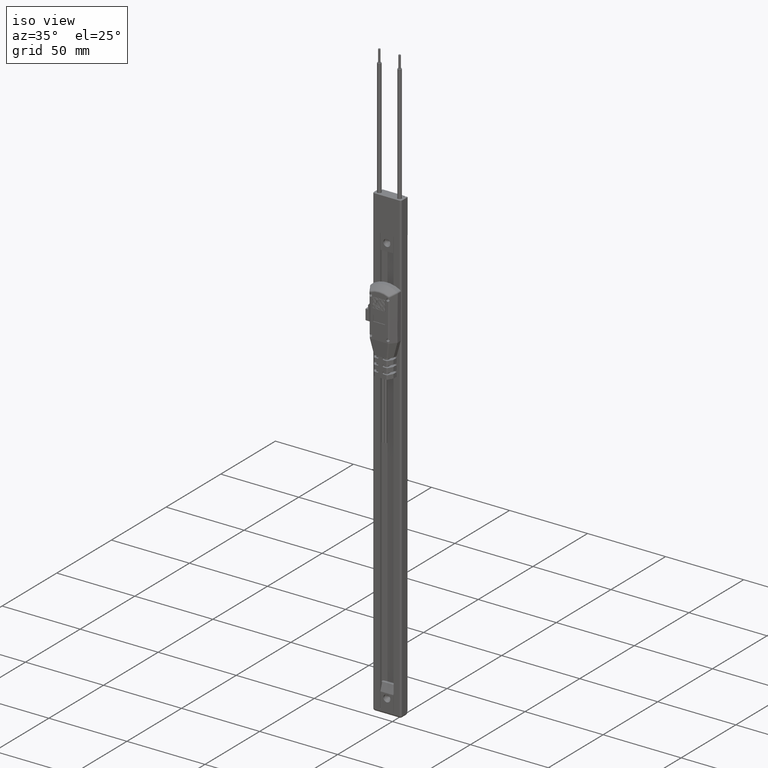
[diagram: clean part render]
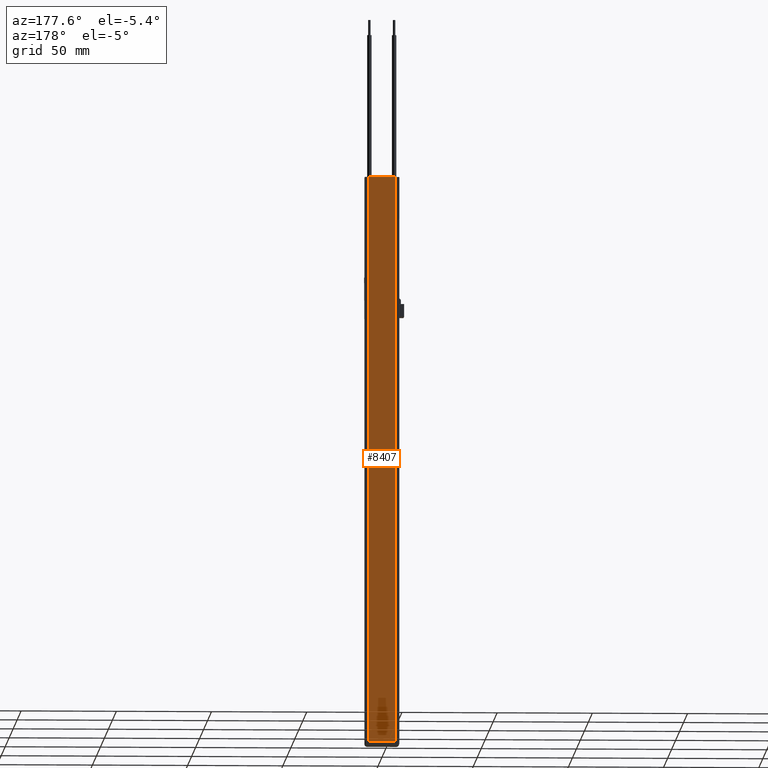
[diagram: tour spotlight — one face highlighted and labeled with its STEP entity id]
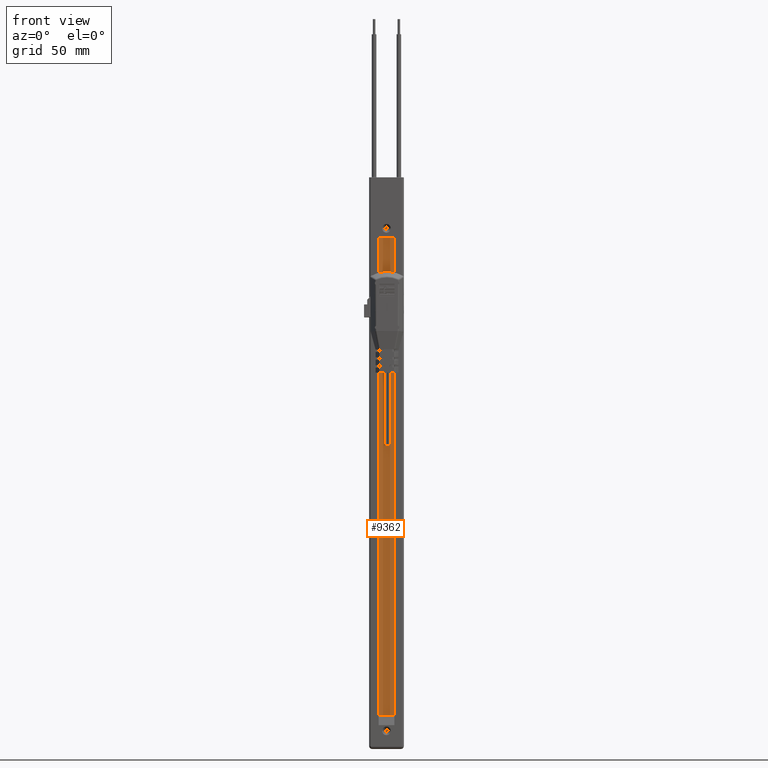
[diagram: tour spotlight — one face highlighted and labeled with its STEP entity id]
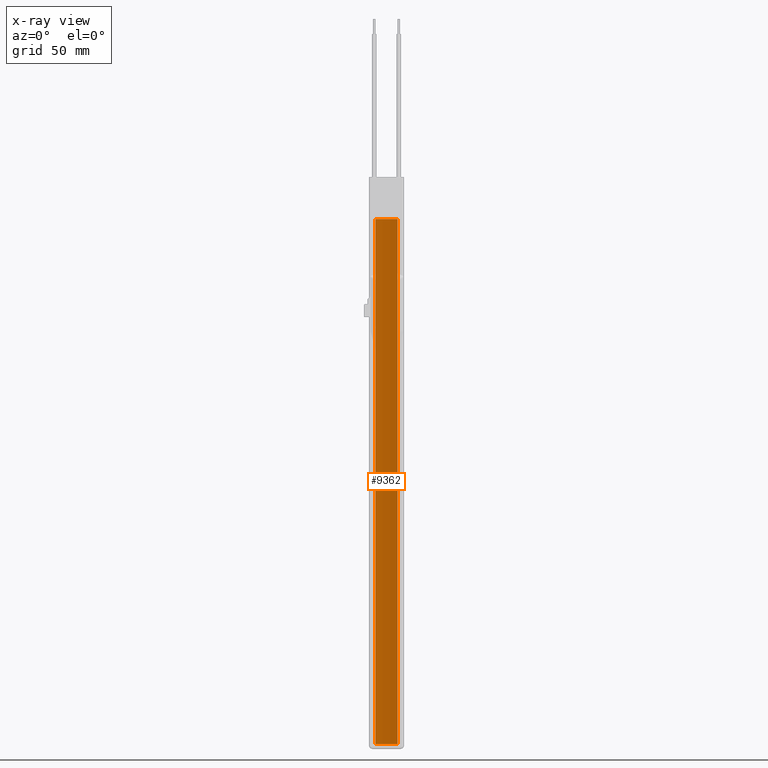
[diagram: x-ray of the same camera — body ghosted, this tour face saturated]
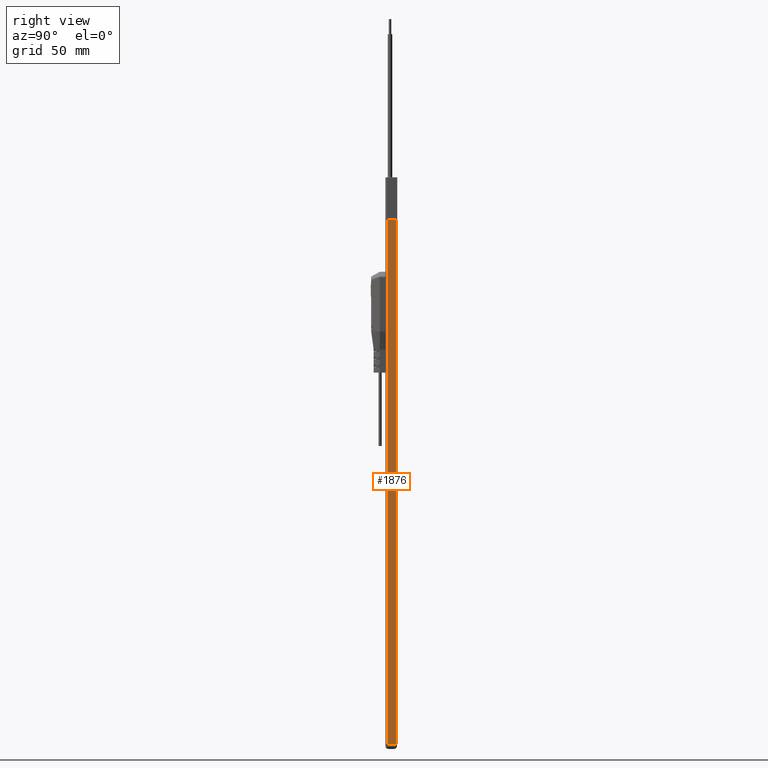
[diagram: tour spotlight — one face highlighted and labeled with its STEP entity id]
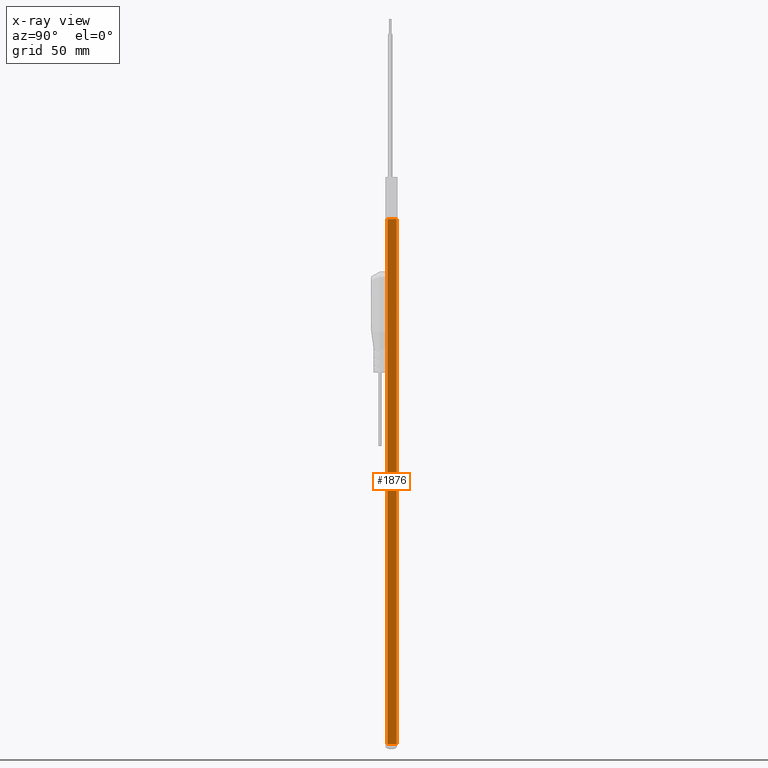
[diagram: x-ray of the same camera — body ghosted, this tour face saturated]
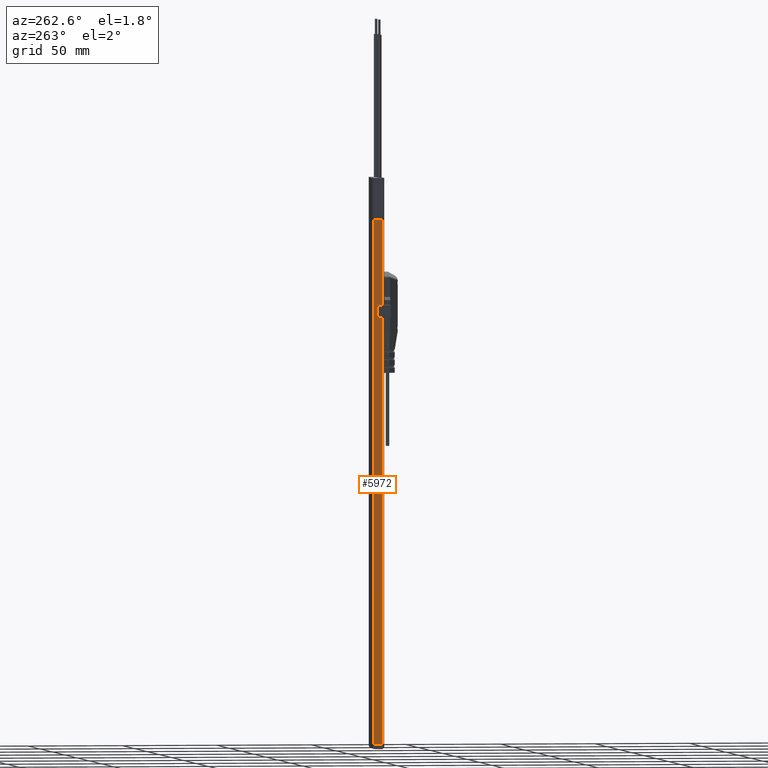
[diagram: tour spotlight — one face highlighted and labeled with its STEP entity id]
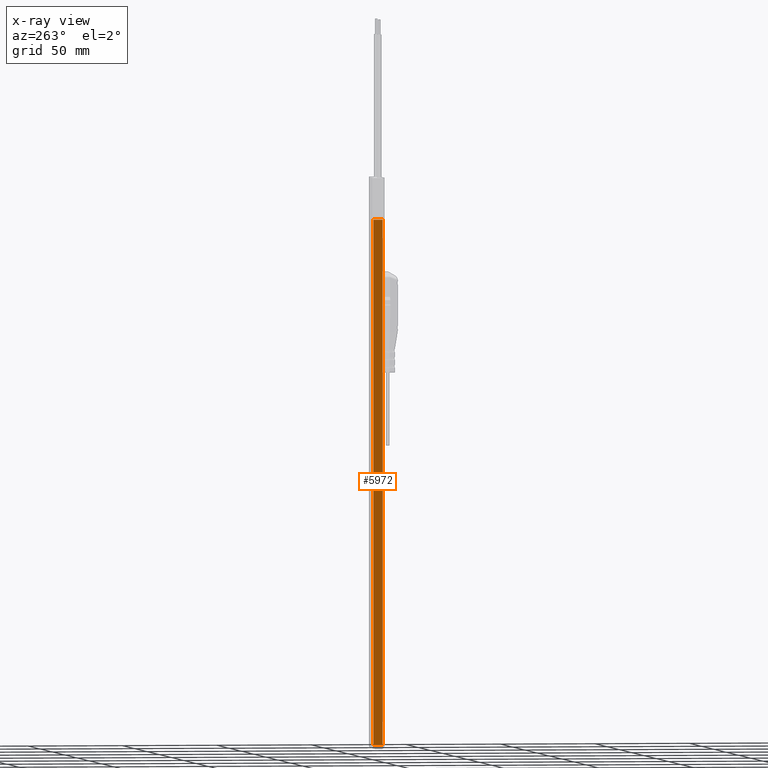
[diagram: x-ray of the same camera — body ghosted, this tour face saturated]
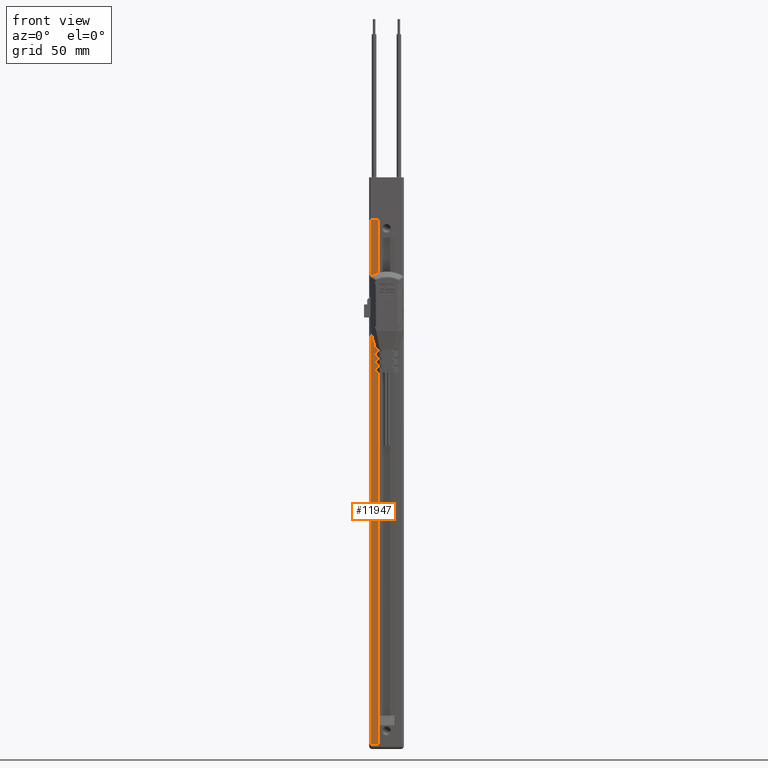
[diagram: tour spotlight — one face highlighted and labeled with its STEP entity id]
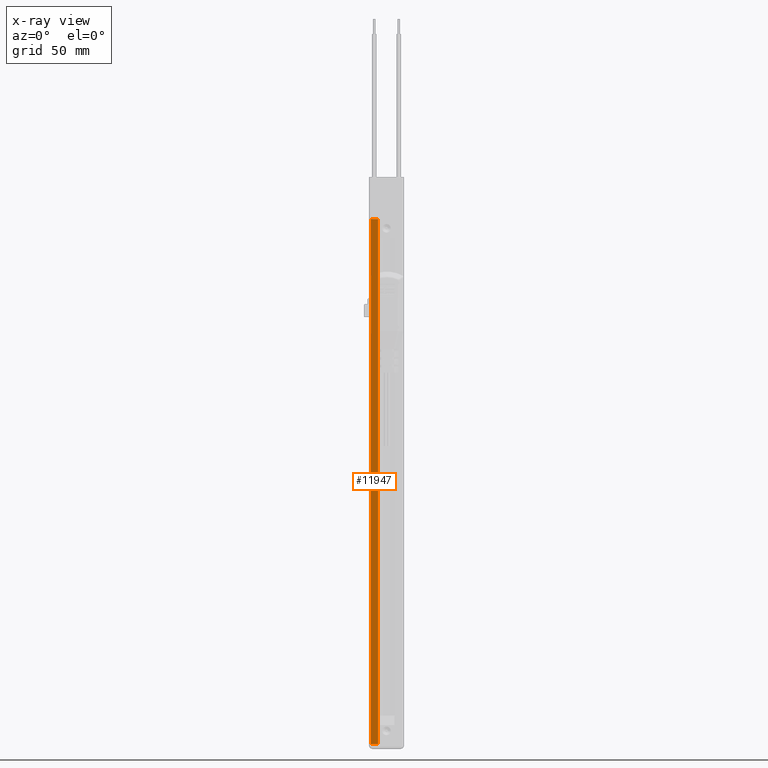
[diagram: x-ray of the same camera — body ghosted, this tour face saturated]
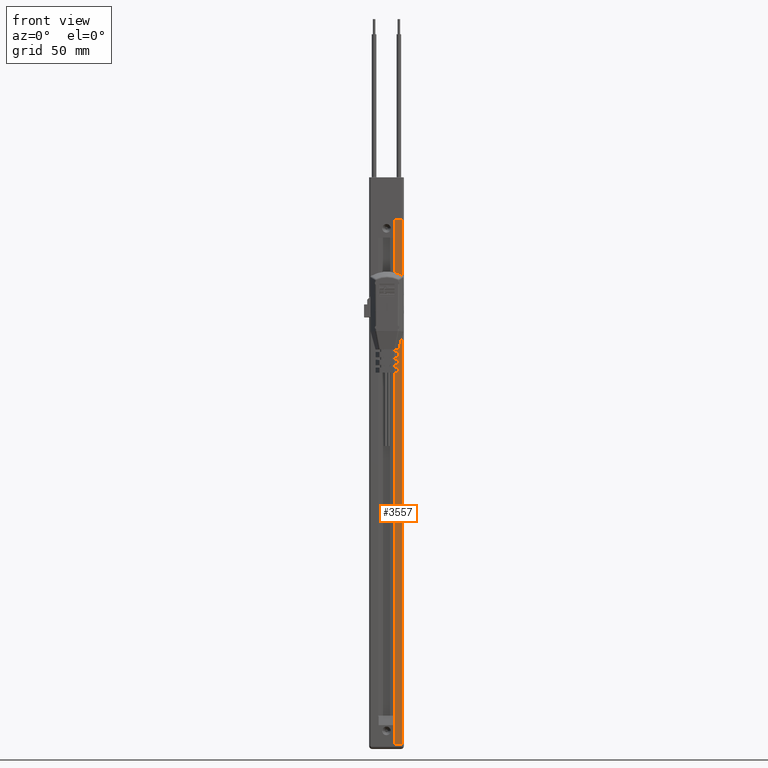
[diagram: tour spotlight — one face highlighted and labeled with its STEP entity id]
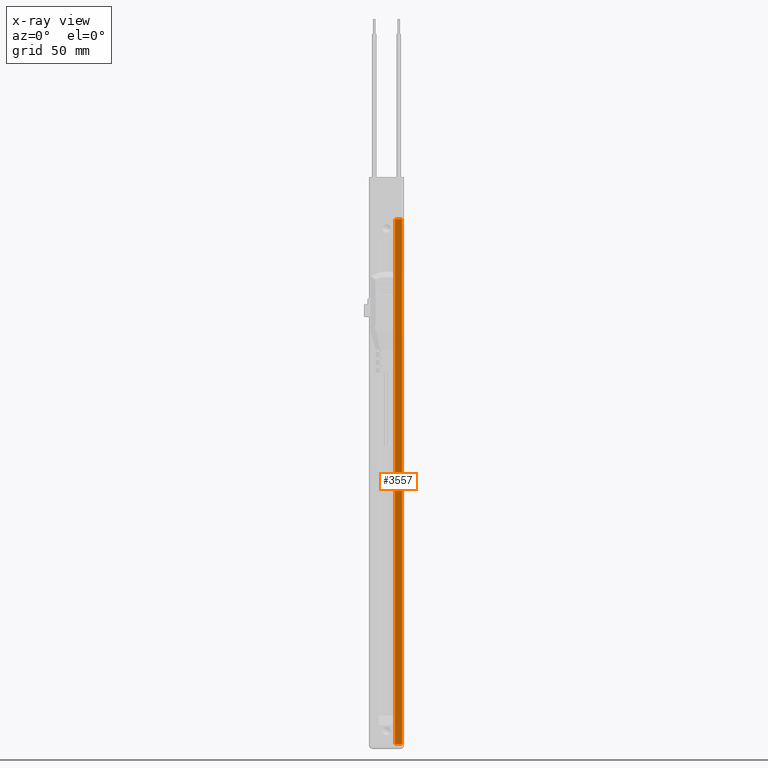
[diagram: x-ray of the same camera — body ghosted, this tour face saturated]
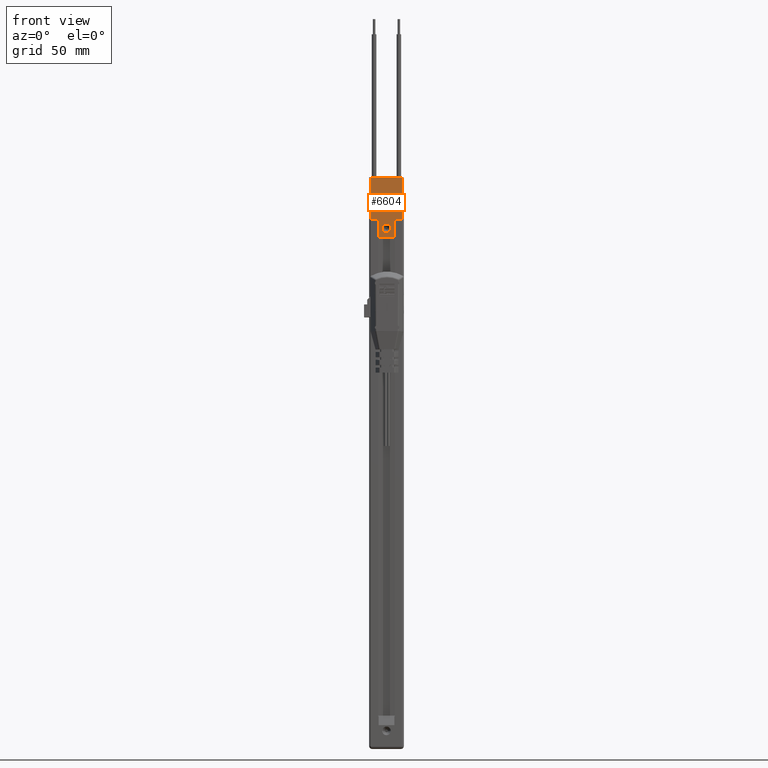
[diagram: tour spotlight — one face highlighted and labeled with its STEP entity id]
A machine part: a face-by-face anatomy tour. The part has 426 B-rep faces; the first image is the clean iso view, then the 7 largest visible faces are spotlighted one at a time (largest first), each with its STEP entity span.

Face 1 — auxiliary view, entity #8407. In plain terms, the highlighted planar face has unit normal (0, -1, 0).
Definition (entity closure, byte-faithful):
#329 = LINE ( 'NONE', #1498, #11749 ) ;
#696 = DIRECTION ( 'NONE',  ( -0.000000000000000000, -0.000000000000000000, -1.000000000000000000 ) ) ;
#1097 = ORIENTED_EDGE ( 'NONE', *, *, #7080, .T. ) ;
#1170 = VECTOR ( 'NONE', #696, 1000.000000000000000 ) ;
#1498 = CARTESIAN_POINT ( 'NONE',  ( 7.099999999999999645, 1.199999999999997957, -148.7500000000000000 ) ) ;
#1891 = DIRECTION ( 'NONE',  ( 0.000000000000000000, -1.000000000000000000, 0.000000000000000000 ) ) ;
#1932 = PLANE ( 'NONE',  #2416 ) ;
#1981 = DIRECTION ( 'NONE',  ( 0.000000000000000000, -0.000000000000000000, -1.000000000000000000 ) ) ;
#2194 = CARTESIAN_POINT ( 'NONE',  ( -7.099999999999999645, 1.199999999999997957, 148.7500000000000000 ) ) ;
#2196 = EDGE_CURVE ( 'NONE', #10244, #10717, #13509, .T. ) ;
#2416 = AXIS2_PLACEMENT_3D ( 'NONE', #5084, #1891, #1981 ) ;
#2745 = VECTOR ( 'NONE', #11478, 1000.000000000000000 ) ;
#2921 = ORIENTED_EDGE ( 'NONE', *, *, #7151, .T. ) ;
#3522 = LINE ( 'NONE', #12378, #1170 ) ;
#3776 = ORIENTED_EDGE ( 'NONE', *, *, #4885, .F. ) ;
#3802 = VERTEX_POINT ( 'NONE', #8550 ) ;
#4135 = ORIENTED_EDGE ( 'NONE', *, *, #2196, .F. ) ;
#4647 = VECTOR ( 'NONE', #7258, 1000.000000000000000 ) ;
#4717 = DIRECTION ( 'NONE',  ( -1.000000000000000000, 0.000000000000000000, 0.000000000000000000 ) ) ;
#4885 = EDGE_CURVE ( 'NONE', #10717, #6773, #6651, .T. ) ;
#5084 = CARTESIAN_POINT ( 'NONE',  ( 7.099999999999999645, 1.199999999999997957, 148.7500000000000000 ) ) ;
#6651 = LINE ( 'NONE', #11387, #2745 ) ;
#6773 = VERTEX_POINT ( 'NONE', #8232 ) ;
#7080 = EDGE_CURVE ( 'NONE', #3802, #6773, #329, .T. ) ;
#7151 = EDGE_CURVE ( 'NONE', #10244, #3802, #3522, .T. ) ;
#7258 = DIRECTION ( 'NONE',  ( -1.000000000000000000, 0.000000000000000000, 0.000000000000000000 ) ) ;
#7612 = CARTESIAN_POINT ( 'NONE',  ( 7.099999999999999645, 1.199999999999997957, 148.7500000000000000 ) ) ;
#8232 = CARTESIAN_POINT ( 'NONE',  ( -7.099999999999999645, 1.199999999999997957, -148.7500000000000000 ) ) ;
#8241 = FACE_OUTER_BOUND ( 'NONE', #10268, .T. ) ;
#8407 = ADVANCED_FACE ( 'NONE', ( #8241 ), #1932, .F. ) ;
#8550 = CARTESIAN_POINT ( 'NONE',  ( 7.099999999999999645, 1.199999999999997957, -148.7500000000000000 ) ) ;
#10244 = VERTEX_POINT ( 'NONE', #7612 ) ;
#10268 = EDGE_LOOP ( 'NONE', ( #1097, #3776, #4135, #2921 ) ) ;
#10717 = VERTEX_POINT ( 'NONE', #2194 ) ;
#11387 = CARTESIAN_POINT ( 'NONE',  ( -7.099999999999999645, 1.199999999999997957, 148.7500000000000000 ) ) ;
#11478 = DIRECTION ( 'NONE',  ( -0.000000000000000000, -0.000000000000000000, -1.000000000000000000 ) ) ;
#11749 = VECTOR ( 'NONE', #4717, 1000.000000000000000 ) ;
#12378 = CARTESIAN_POINT ( 'NONE',  ( 7.099999999999999645, 1.199999999999997957, 148.7500000000000000 ) ) ;
#13509 = LINE ( 'NONE', #13655, #4647 ) ;
#13655 = CARTESIAN_POINT ( 'NONE',  ( 7.099999999999999645, 1.199999999999997957, 148.7500000000000000 ) ) ;

Face 2 — front view, entity #9362. An x-ray twin of the same camera follows (body ghosted, this face saturated) — the face is partly hidden behind the body. In plain terms, the highlighted cylindrical surface (partial cylindrical patch) has radius 33.7261 mm, axis along (0, 0, -1).
Definition (entity closure, byte-faithful):
#496 = CARTESIAN_POINT ( 'NONE',  ( 0.000000000000000000, 35.12614304289426315, 137.7500000000000000 ) ) ;
#810 = ORIENTED_EDGE ( 'NONE', *, *, #7844, .F. ) ;
#1012 = DIRECTION ( 'NONE',  ( -0.000000000000000000, -0.000000000000000000, -1.000000000000000000 ) ) ;
#1212 = EDGE_LOOP ( 'NONE', ( #9853, #810, #3066, #13319 ) ) ;
#1459 = FACE_OUTER_BOUND ( 'NONE', #1212, .T. ) ;
#2088 = VERTEX_POINT ( 'NONE', #4884 ) ;
#2100 = EDGE_CURVE ( 'NONE', #2088, #4991, #10856, .T. ) ;
#2949 = VERTEX_POINT ( 'NONE', #7993 ) ;
#3066 = ORIENTED_EDGE ( 'NONE', *, *, #10931, .F. ) ;
#3117 = DIRECTION ( 'NONE',  ( 1.000000000000000000, 0.000000000000000000, 0.000000000000000000 ) ) ;
#3606 = AXIS2_PLACEMENT_3D ( 'NONE', #7139, #6097, #4029 ) ;
#4029 = DIRECTION ( 'NONE',  ( 1.000000000000000000, 0.000000000000000000, 0.000000000000000000 ) ) ;
#4241 = CARTESIAN_POINT ( 'NONE',  ( 0.000000000000000000, 35.12614304289426315, 137.7500000000000000 ) ) ;
#4884 = CARTESIAN_POINT ( 'NONE',  ( 5.785857157145725793, 1.899999999999999023, 137.7500000000000000 ) ) ;
#4936 = CIRCLE ( 'NONE', #8594, 33.72614304289426457 ) ;
#4991 = VERTEX_POINT ( 'NONE', #13394 ) ;
#6097 = DIRECTION ( 'NONE',  ( -0.000000000000000000, -0.000000000000000000, -1.000000000000000000 ) ) ;
#6131 = DIRECTION ( 'NONE',  ( -0.000000000000000000, -0.000000000000000000, -1.000000000000000000 ) ) ;
#6823 = DIRECTION ( 'NONE',  ( -1.000000000000000000, 0.000000000000000000, 0.000000000000000000 ) ) ;
#7139 = CARTESIAN_POINT ( 'NONE',  ( 0.000000000000000000, 35.12614304289426315, -137.7500000000000000 ) ) ;
#7178 = CIRCLE ( 'NONE', #3606, 33.72614304289426457 ) ;
#7605 = VERTEX_POINT ( 'NONE', #7726 ) ;
#7726 = CARTESIAN_POINT ( 'NONE',  ( -5.785857157145717800, 1.899999999999999245, -137.7500000000000000 ) ) ;
#7844 = EDGE_CURVE ( 'NONE', #2949, #7605, #13050, .T. ) ;
#7993 = CARTESIAN_POINT ( 'NONE',  ( -5.785857157145717800, 1.899999999999999245, 137.7500000000000000 ) ) ;
#8029 = VECTOR ( 'NONE', #11219, 1000.000000000000000 ) ;
#8594 = AXIS2_PLACEMENT_3D ( 'NONE', #4241, #1012, #3117 ) ;
#9136 = DIRECTION ( 'NONE',  ( -0.000000000000000000, -0.000000000000000000, -1.000000000000000000 ) ) ;
#9362 = ADVANCED_FACE ( 'NONE', ( #1459 ), #10388, .F. ) ;
#9853 = ORIENTED_EDGE ( 'NONE', *, *, #10030, .T. ) ;
#10030 = EDGE_CURVE ( 'NONE', #4991, #7605, #7178, .T. ) ;
#10288 = CARTESIAN_POINT ( 'NONE',  ( 5.785857157145725793, 1.899999999999999023, 137.7500000000000000 ) ) ;
#10388 = CYLINDRICAL_SURFACE ( 'NONE', #13829, 33.72614304289426457 ) ;
#10856 = LINE ( 'NONE', #10288, #8029 ) ;
#10931 = EDGE_CURVE ( 'NONE', #2088, #2949, #4936, .T. ) ;
#11219 = DIRECTION ( 'NONE',  ( -0.000000000000000000, -0.000000000000000000, -1.000000000000000000 ) ) ;
#11560 = VECTOR ( 'NONE', #6131, 1000.000000000000000 ) ;
#13050 = LINE ( 'NONE', #13490, #11560 ) ;
#13319 = ORIENTED_EDGE ( 'NONE', *, *, #2100, .T. ) ;
#13394 = CARTESIAN_POINT ( 'NONE',  ( 5.785857157145725793, 1.899999999999999023, -137.7500000000000000 ) ) ;
#13490 = CARTESIAN_POINT ( 'NONE',  ( -5.785857157145717800, 1.899999999999999245, 137.7500000000000000 ) ) ;
#13829 = AXIS2_PLACEMENT_3D ( 'NONE', #496, #9136, #6823 ) ;

Face 3 — right view, entity #1876. An x-ray twin of the same camera follows (body ghosted, this face saturated) — the face is partly hidden behind the body. In plain terms, the highlighted planar face has unit normal (-1, -0, 0).
Definition (entity closure, byte-faithful):
#156 = VERTEX_POINT ( 'NONE', #5999 ) ;
#668 = EDGE_CURVE ( 'NONE', #7609, #156, #13887, .T. ) ;
#970 = CARTESIAN_POINT ( 'NONE',  ( -9.099999999999999645, -0.8000000000000003775, 137.7500000000000000 ) ) ;
#1468 = CARTESIAN_POINT ( 'NONE',  ( -9.099999999999999645, -0.8000000000000003775, -137.7500000000000000 ) ) ;
#1876 = ADVANCED_FACE ( 'NONE', ( #12177 ), #6280, .F. ) ;
#2953 = CARTESIAN_POINT ( 'NONE',  ( -9.099999999999999645, 4.000000000000000000, 137.7500000000000000 ) ) ;
#3041 = CARTESIAN_POINT ( 'NONE',  ( -9.099999999999999645, 5.000000000000000000, 137.7500000000000000 ) ) ;
#3772 = VECTOR ( 'NONE', #6730, 1000.000000000000000 ) ;
#3831 = CARTESIAN_POINT ( 'NONE',  ( -9.099999999999999645, 5.000000000000000000, -137.7500000000000000 ) ) ;
#4001 = EDGE_LOOP ( 'NONE', ( #5878, #7390, #7687, #5943 ) ) ;
#4070 = DIRECTION ( 'NONE',  ( -0.000000000000000000, 0.000000000000000000, -1.000000000000000000 ) ) ;
#4080 = EDGE_CURVE ( 'NONE', #6500, #11645, #10356, .T. ) ;
#4187 = EDGE_CURVE ( 'NONE', #6500, #156, #4796, .T. ) ;
#4796 = LINE ( 'NONE', #13337, #10035 ) ;
#5606 = LINE ( 'NONE', #3831, #12768 ) ;
#5878 = ORIENTED_EDGE ( 'NONE', *, *, #11900, .T. ) ;
#5943 = ORIENTED_EDGE ( 'NONE', *, *, #4080, .T. ) ;
#5999 = CARTESIAN_POINT ( 'NONE',  ( -9.099999999999999645, -0.8000000000000003775, 137.7500000000000000 ) ) ;
#6280 = PLANE ( 'NONE',  #10698 ) ;
#6500 = VERTEX_POINT ( 'NONE', #2953 ) ;
#6730 = DIRECTION ( 'NONE',  ( 0.000000000000000000, 0.000000000000000000, -1.000000000000000000 ) ) ;
#7390 = ORIENTED_EDGE ( 'NONE', *, *, #668, .T. ) ;
#7609 = VERTEX_POINT ( 'NONE', #1468 ) ;
#7687 = ORIENTED_EDGE ( 'NONE', *, *, #4187, .F. ) ;
#7917 = CARTESIAN_POINT ( 'NONE',  ( -9.099999999999999645, 4.000000000000000000, 137.7500000000000000 ) ) ;
#8102 = DIRECTION ( 'NONE',  ( 0.000000000000000000, -1.000000000000000000, 0.000000000000000000 ) ) ;
#9422 = DIRECTION ( 'NONE',  ( 0.000000000000000000, -1.000000000000000000, 0.000000000000000000 ) ) ;
#10035 = VECTOR ( 'NONE', #8102, 1000.000000000000000 ) ;
#10234 = DIRECTION ( 'NONE',  ( -0.000000000000000000, -0.000000000000000000, 1.000000000000000000 ) ) ;
#10356 = LINE ( 'NONE', #7917, #3772 ) ;
#10698 = AXIS2_PLACEMENT_3D ( 'NONE', #3041, #11592, #4070 ) ;
#11049 = CARTESIAN_POINT ( 'NONE',  ( -9.099999999999999645, 4.000000000000000000, -137.7500000000000000 ) ) ;
#11592 = DIRECTION ( 'NONE',  ( 1.000000000000000000, 0.000000000000000000, -0.000000000000000000 ) ) ;
#11645 = VERTEX_POINT ( 'NONE', #11049 ) ;
#11900 = EDGE_CURVE ( 'NONE', #11645, #7609, #5606, .T. ) ;
#12177 = FACE_OUTER_BOUND ( 'NONE', #4001, .T. ) ;
#12768 = VECTOR ( 'NONE', #9422, 1000.000000000000000 ) ;
#12888 = VECTOR ( 'NONE', #10234, 1000.000000000000000 ) ;
#13337 = CARTESIAN_POINT ( 'NONE',  ( -9.099999999999999645, 5.000000000000000000, 137.7500000000000000 ) ) ;
#13887 = LINE ( 'NONE', #970, #12888 ) ;

Face 4 — auxiliary view, entity #5972. An x-ray twin of the same camera follows (body ghosted, this face saturated) — the face is partly hidden behind the body. In plain terms, the highlighted planar face has unit normal (1, 0, 0).
Definition (entity closure, byte-faithful):
#438 = LINE ( 'NONE', #613, #4310 ) ;
#564 = LINE ( 'NONE', #1166, #6484 ) ;
#613 = CARTESIAN_POINT ( 'NONE',  ( 9.099999999999999645, 4.000000000000000000, 137.7500000000000000 ) ) ;
#1057 = ORIENTED_EDGE ( 'NONE', *, *, #6556, .F. ) ;
#1073 = DIRECTION ( 'NONE',  ( -1.000000000000000000, 0.000000000000000000, 0.000000000000000000 ) ) ;
#1166 = CARTESIAN_POINT ( 'NONE',  ( 9.099999999999999645, -0.8000000000000003775, 137.7500000000000000 ) ) ;
#1521 = VERTEX_POINT ( 'NONE', #8279 ) ;
#1690 = DIRECTION ( 'NONE',  ( -0.000000000000000000, -0.000000000000000000, 1.000000000000000000 ) ) ;
#1724 = EDGE_CURVE ( 'NONE', #7074, #8313, #438, .T. ) ;
#2180 = EDGE_CURVE ( 'NONE', #5946, #7074, #11689, .T. ) ;
#2346 = ORIENTED_EDGE ( 'NONE', *, *, #1724, .T. ) ;
#2729 = CARTESIAN_POINT ( 'NONE',  ( 9.099999999999999645, 4.000000000000000000, 137.7500000000000000 ) ) ;
#2937 = CARTESIAN_POINT ( 'NONE',  ( 9.099999999999999645, 5.000000000000000000, 137.7500000000000000 ) ) ;
#3379 = LINE ( 'NONE', #2937, #7285 ) ;
#3396 = AXIS2_PLACEMENT_3D ( 'NONE', #12835, #1073, #13758 ) ;
#3397 = CARTESIAN_POINT ( 'NONE',  ( 9.099999999999999645, 4.000000000000000000, -137.7500000000000000 ) ) ;
#3709 = ORIENTED_EDGE ( 'NONE', *, *, #2180, .T. ) ;
#4310 = VECTOR ( 'NONE', #1690, 1000.000000000000000 ) ;
#4454 = DIRECTION ( 'NONE',  ( 0.000000000000000000, 0.000000000000000000, -1.000000000000000000 ) ) ;
#5203 = CARTESIAN_POINT ( 'NONE',  ( 9.099999999999999645, 5.000000000000000000, -137.7500000000000000 ) ) ;
#5264 = FACE_OUTER_BOUND ( 'NONE', #13541, .T. ) ;
#5946 = VERTEX_POINT ( 'NONE', #11817 ) ;
#5972 = ADVANCED_FACE ( 'NONE', ( #5264 ), #6505, .F. ) ;
#6357 = ORIENTED_EDGE ( 'NONE', *, *, #10752, .T. ) ;
#6484 = VECTOR ( 'NONE', #4454, 1000.000000000000000 ) ;
#6505 = PLANE ( 'NONE',  #3396 ) ;
#6556 = EDGE_CURVE ( 'NONE', #1521, #8313, #3379, .T. ) ;
#7074 = VERTEX_POINT ( 'NONE', #3397 ) ;
#7285 = VECTOR ( 'NONE', #13080, 1000.000000000000000 ) ;
#8279 = CARTESIAN_POINT ( 'NONE',  ( 9.099999999999999645, -0.8000000000000003775, 137.7500000000000000 ) ) ;
#8313 = VERTEX_POINT ( 'NONE', #2729 ) ;
#10474 = DIRECTION ( 'NONE',  ( -0.000000000000000000, 1.000000000000000000, -0.000000000000000000 ) ) ;
#10752 = EDGE_CURVE ( 'NONE', #1521, #5946, #564, .T. ) ;
#11033 = VECTOR ( 'NONE', #10474, 1000.000000000000000 ) ;
#11689 = LINE ( 'NONE', #5203, #11033 ) ;
#11817 = CARTESIAN_POINT ( 'NONE',  ( 9.099999999999999645, -0.8000000000000003775, -137.7500000000000000 ) ) ;
#12835 = CARTESIAN_POINT ( 'NONE',  ( 9.099999999999999645, 5.000000000000000000, 137.7500000000000000 ) ) ;
#13080 = DIRECTION ( 'NONE',  ( -0.000000000000000000, 1.000000000000000000, -0.000000000000000000 ) ) ;
#13541 = EDGE_LOOP ( 'NONE', ( #1057, #6357, #3709, #2346 ) ) ;
#13758 = DIRECTION ( 'NONE',  ( 0.000000000000000000, 0.000000000000000000, 1.000000000000000000 ) ) ;

Face 5 — front view, entity #11947. An x-ray twin of the same camera follows (body ghosted, this face saturated) — the face is partly hidden behind the body. In plain terms, the highlighted planar face has unit normal (-0, 1, 0).
Definition (entity closure, byte-faithful):
#350 = ORIENTED_EDGE ( 'NONE', *, *, #10222, .T. ) ;
#646 = CARTESIAN_POINT ( 'NONE',  ( 8.099999999999999645, 5.000000000000000000, 137.7500000000000000 ) ) ;
#1275 = VERTEX_POINT ( 'NONE', #5361 ) ;
#1510 = ORIENTED_EDGE ( 'NONE', *, *, #10464, .T. ) ;
#2177 = VERTEX_POINT ( 'NONE', #7399 ) ;
#2574 = EDGE_LOOP ( 'NONE', ( #6385, #1510, #350, #3187 ) ) ;
#2854 = EDGE_CURVE ( 'NONE', #1275, #2177, #4651, .T. ) ;
#2915 = LINE ( 'NONE', #8836, #11485 ) ;
#3092 = VECTOR ( 'NONE', #8207, 1000.000000000000000 ) ;
#3187 = ORIENTED_EDGE ( 'NONE', *, *, #2854, .F. ) ;
#3403 = DIRECTION ( 'NONE',  ( -0.000000000000000000, -0.000000000000000000, -1.000000000000000000 ) ) ;
#4237 = VERTEX_POINT ( 'NONE', #6452 ) ;
#4517 = DIRECTION ( 'NONE',  ( -1.000000000000000000, -0.000000000000000000, -0.000000000000000000 ) ) ;
#4572 = FACE_OUTER_BOUND ( 'NONE', #2574, .T. ) ;
#4651 = LINE ( 'NONE', #9862, #10195 ) ;
#4844 = VECTOR ( 'NONE', #5709, 1000.000000000000000 ) ;
#5118 = AXIS2_PLACEMENT_3D ( 'NONE', #7315, #7503, #12694 ) ;
#5361 = CARTESIAN_POINT ( 'NONE',  ( 4.375000000000000000, 5.000000000000000000, 137.7500000000000000 ) ) ;
#5402 = CARTESIAN_POINT ( 'NONE',  ( 8.099999999999999645, 5.000000000000000000, 137.7500000000000000 ) ) ;
#5709 = DIRECTION ( 'NONE',  ( -1.000000000000000000, -0.000000000000000000, -0.000000000000000000 ) ) ;
#5803 = LINE ( 'NONE', #646, #3092 ) ;
#6385 = ORIENTED_EDGE ( 'NONE', *, *, #8657, .F. ) ;
#6452 = CARTESIAN_POINT ( 'NONE',  ( 8.099999999999999645, 5.000000000000000000, -137.7500000000000000 ) ) ;
#7315 = CARTESIAN_POINT ( 'NONE',  ( 4.375000000000000000, 5.000000000000000000, 137.7500000000000000 ) ) ;
#7399 = CARTESIAN_POINT ( 'NONE',  ( 4.375000000000000000, 5.000000000000000000, -137.7500000000000000 ) ) ;
#7503 = DIRECTION ( 'NONE',  ( 0.000000000000000000, -1.000000000000000000, 0.000000000000000000 ) ) ;
#8207 = DIRECTION ( 'NONE',  ( 0.000000000000000000, 0.000000000000000000, -1.000000000000000000 ) ) ;
#8657 = EDGE_CURVE ( 'NONE', #9653, #1275, #10228, .T. ) ;
#8836 = CARTESIAN_POINT ( 'NONE',  ( 4.375000000000000000, 5.000000000000000000, -137.7500000000000000 ) ) ;
#9653 = VERTEX_POINT ( 'NONE', #5402 ) ;
#9862 = CARTESIAN_POINT ( 'NONE',  ( 4.375000000000000000, 5.000000000000000000, 137.7500000000000000 ) ) ;
#10195 = VECTOR ( 'NONE', #3403, 1000.000000000000000 ) ;
#10222 = EDGE_CURVE ( 'NONE', #4237, #2177, #2915, .T. ) ;
#10228 = LINE ( 'NONE', #13262, #4844 ) ;
#10464 = EDGE_CURVE ( 'NONE', #9653, #4237, #5803, .T. ) ;
#11485 = VECTOR ( 'NONE', #4517, 1000.000000000000000 ) ;
#11723 = PLANE ( 'NONE',  #5118 ) ;
#11947 = ADVANCED_FACE ( 'NONE', ( #4572 ), #11723, .F. ) ;
#12694 = DIRECTION ( 'NONE',  ( 0.000000000000000000, -0.000000000000000000, -1.000000000000000000 ) ) ;
#13262 = CARTESIAN_POINT ( 'NONE',  ( 4.375000000000000000, 5.000000000000000000, 137.7500000000000000 ) ) ;

Face 6 — front view, entity #3557. An x-ray twin of the same camera follows (body ghosted, this face saturated) — the face is partly hidden behind the body. In plain terms, the highlighted planar face has unit normal (-0, 1, 0).
Definition (entity closure, byte-faithful):
#775 = CARTESIAN_POINT ( 'NONE',  ( -4.375000000000000000, 5.000000000000000000, -137.7500000000000000 ) ) ;
#1144 = VERTEX_POINT ( 'NONE', #775 ) ;
#1580 = CARTESIAN_POINT ( 'NONE',  ( -8.099999999999999645, 5.000000000000000000, 137.7500000000000000 ) ) ;
#1854 = PLANE ( 'NONE',  #10117 ) ;
#2043 = EDGE_CURVE ( 'NONE', #4554, #5294, #8204, .T. ) ;
#3094 = EDGE_CURVE ( 'NONE', #8911, #1144, #8878, .T. ) ;
#3381 = ORIENTED_EDGE ( 'NONE', *, *, #9548, .T. ) ;
#3557 = ADVANCED_FACE ( 'NONE', ( #9220 ), #1854, .F. ) ;
#3999 = DIRECTION ( 'NONE',  ( -1.000000000000000000, 0.000000000000000000, 0.000000000000000000 ) ) ;
#4554 = VERTEX_POINT ( 'NONE', #10492 ) ;
#4621 = EDGE_CURVE ( 'NONE', #8911, #5294, #13823, .T. ) ;
#5172 = ORIENTED_EDGE ( 'NONE', *, *, #3094, .T. ) ;
#5193 = DIRECTION ( 'NONE',  ( 0.000000000000000000, -1.000000000000000000, 0.000000000000000000 ) ) ;
#5294 = VERTEX_POINT ( 'NONE', #7279 ) ;
#5332 = VECTOR ( 'NONE', #5976, 1000.000000000000000 ) ;
#5435 = ORIENTED_EDGE ( 'NONE', *, *, #4621, .F. ) ;
#5976 = DIRECTION ( 'NONE',  ( -0.000000000000000000, -0.000000000000000000, 1.000000000000000000 ) ) ;
#5991 = VECTOR ( 'NONE', #9112, 1000.000000000000000 ) ;
#7279 = CARTESIAN_POINT ( 'NONE',  ( -8.099999999999999645, 5.000000000000000000, 137.7500000000000000 ) ) ;
#7387 = CARTESIAN_POINT ( 'NONE',  ( -4.375000000000000000, 5.000000000000000000, 137.7500000000000000 ) ) ;
#7804 = ORIENTED_EDGE ( 'NONE', *, *, #2043, .T. ) ;
#8026 = EDGE_LOOP ( 'NONE', ( #3381, #7804, #5435, #5172 ) ) ;
#8056 = LINE ( 'NONE', #11624, #8400 ) ;
#8183 = VECTOR ( 'NONE', #10535, 1000.000000000000000 ) ;
#8204 = LINE ( 'NONE', #1580, #5332 ) ;
#8400 = VECTOR ( 'NONE', #3999, 1000.000000000000000 ) ;
#8878 = LINE ( 'NONE', #13454, #5991 ) ;
#8911 = VERTEX_POINT ( 'NONE', #12651 ) ;
#9112 = DIRECTION ( 'NONE',  ( -0.000000000000000000, -0.000000000000000000, -1.000000000000000000 ) ) ;
#9220 = FACE_OUTER_BOUND ( 'NONE', #8026, .T. ) ;
#9476 = CARTESIAN_POINT ( 'NONE',  ( -4.375000000000000000, 5.000000000000000000, 137.7500000000000000 ) ) ;
#9548 = EDGE_CURVE ( 'NONE', #1144, #4554, #8056, .T. ) ;
#10117 = AXIS2_PLACEMENT_3D ( 'NONE', #7387, #5193, #10513 ) ;
#10492 = CARTESIAN_POINT ( 'NONE',  ( -8.099999999999999645, 5.000000000000000000, -137.7500000000000000 ) ) ;
#10513 = DIRECTION ( 'NONE',  ( 0.000000000000000000, -0.000000000000000000, -1.000000000000000000 ) ) ;
#10535 = DIRECTION ( 'NONE',  ( -1.000000000000000000, 0.000000000000000000, 0.000000000000000000 ) ) ;
#11624 = CARTESIAN_POINT ( 'NONE',  ( -4.375000000000000000, 5.000000000000000000, -137.7500000000000000 ) ) ;
#12651 = CARTESIAN_POINT ( 'NONE',  ( -4.375000000000000000, 5.000000000000000000, 137.7500000000000000 ) ) ;
#13454 = CARTESIAN_POINT ( 'NONE',  ( -4.375000000000000000, 5.000000000000000000, 137.7500000000000000 ) ) ;
#13823 = LINE ( 'NONE', #9476, #8183 ) ;

Face 7 — front view, entity #6604. In plain terms, the highlighted planar face has unit normal (-0, 1, 0).
Definition (entity closure, byte-faithful):
#125 = ORIENTED_EDGE ( 'NONE', *, *, #2919, .T. ) ;
#166 = DIRECTION ( 'NONE',  ( 1.000000000000000000, 5.354084802397553734E-17, 0.000000000000000000 ) ) ;
#367 = CARTESIAN_POINT ( 'NONE',  ( -8.099999999999999645, 5.000000000000000000, 269.8000000000000682 ) ) ;
#421 = CARTESIAN_POINT ( 'NONE',  ( 2.250000000000002220, 5.000000000000000000, 243.1999999999999886 ) ) ;
#466 = LINE ( 'NONE', #9152, #1150 ) ;
#494 = DIRECTION ( 'NONE',  ( 1.000000000000000000, -0.000000000000000000, -0.000000000000000000 ) ) ;
#593 = EDGE_CURVE ( 'NONE', #12947, #10643, #466, .T. ) ;
#603 = CARTESIAN_POINT ( 'NONE',  ( 8.099999999999999645, 5.000000000000000888, 248.0000000000000000 ) ) ;
#1150 = VECTOR ( 'NONE', #6885, 1000.000000000000000 ) ;
#1156 = DIRECTION ( 'NONE',  ( -0.000000000000000000, -0.000000000000000000, -1.000000000000000000 ) ) ;
#1244 = DIRECTION ( 'NONE',  ( 5.354084802397553734E-17, -1.000000000000000000, 0.000000000000000000 ) ) ;
#1350 = CARTESIAN_POINT ( 'NONE',  ( 4.150000000000000355, 5.000000000000001776, 238.1999999999999886 ) ) ;
#1595 = AXIS2_PLACEMENT_3D ( 'NONE', #6800, #6849, #4674 ) ;
#1681 = FACE_BOUND ( 'NONE', #7538, .T. ) ;
#1705 = ORIENTED_EDGE ( 'NONE', *, *, #2576, .F. ) ;
#1894 = CARTESIAN_POINT ( 'NONE',  ( 4.150000000000000355, 5.000000000000001776, 238.1999999999999886 ) ) ;
#2029 = CIRCLE ( 'NONE', #5494, 2.250000000000001776 ) ;
#2440 = EDGE_CURVE ( 'NONE', #8498, #7556, #4314, .T. ) ;
#2576 = EDGE_CURVE ( 'NONE', #3734, #12947, #3292, .T. ) ;
#2606 = VECTOR ( 'NONE', #494, 1000.000000000000000 ) ;
#2702 = EDGE_CURVE ( 'NONE', #3734, #4538, #13513, .T. ) ;
#2784 = CARTESIAN_POINT ( 'NONE',  ( 5.996574978685258605E-16, 5.000000000000000000, 243.1999999999999886 ) ) ;
#2919 = EDGE_CURVE ( 'NONE', #7556, #10643, #7358, .T. ) ;
#3131 = VERTEX_POINT ( 'NONE', #13727 ) ;
#3218 = ORIENTED_EDGE ( 'NONE', *, *, #13427, .T. ) ;
#3292 = LINE ( 'NONE', #1350, #2606 ) ;
#3545 = ORIENTED_EDGE ( 'NONE', *, *, #6358, .F. ) ;
#3734 = VERTEX_POINT ( 'NONE', #12601 ) ;
#4068 = CARTESIAN_POINT ( 'NONE',  ( -4.150000000000001243, 5.000000000000000000, 248.0000000000000000 ) ) ;
#4314 = LINE ( 'NONE', #13675, #5514 ) ;
#4349 = CARTESIAN_POINT ( 'NONE',  ( 8.099999999999999645, 5.000000000000000888, 248.0000000000000000 ) ) ;
#4442 = CARTESIAN_POINT ( 'NONE',  ( -8.099999999999999645, 5.000000000000000000, 270.0000000000000000 ) ) ;
#4538 = VERTEX_POINT ( 'NONE', #4068 ) ;
#4674 = DIRECTION ( 'NONE',  ( -1.000000000000000000, 0.000000000000000000, 0.000000000000000000 ) ) ;
#4849 = DIRECTION ( 'NONE',  ( -1.000000000000000000, -5.354084802397553118E-17, 0.000000000000000000 ) ) ;
#5040 = CARTESIAN_POINT ( 'NONE',  ( 8.099999999999999645, 5.000000000000000888, 269.8000000000000682 ) ) ;
#5380 = DIRECTION ( 'NONE',  ( -0.000000000000000000, -0.000000000000000000, -1.000000000000000000 ) ) ;
#5418 = VERTEX_POINT ( 'NONE', #5570 ) ;
#5494 = AXIS2_PLACEMENT_3D ( 'NONE', #2784, #12392, #6004 ) ;
#5514 = VECTOR ( 'NONE', #5380, 1000.000000000000000 ) ;
#5570 = CARTESIAN_POINT ( 'NONE',  ( -8.099999999999999645, 5.000000000000000000, 248.0000000000000000 ) ) ;
#5577 = DIRECTION ( 'NONE',  ( 1.000000000000000000, 5.354084802397553734E-17, -0.000000000000000000 ) ) ;
#5589 = PLANE ( 'NONE',  #11675 ) ;
#5657 = VECTOR ( 'NONE', #10789, 1000.000000000000000 ) ;
#6004 = DIRECTION ( 'NONE',  ( -1.000000000000000000, 0.000000000000000000, 0.000000000000000000 ) ) ;
#6358 = EDGE_CURVE ( 'NONE', #10373, #3131, #11118, .T. ) ;
#6519 = VECTOR ( 'NONE', #13889, 1000.000000000000000 ) ;
#6604 = ADVANCED_FACE ( 'NONE', ( #1681, #13420 ), #5589, .F. ) ;
#6689 = EDGE_CURVE ( 'NONE', #3131, #10373, #2029, .T. ) ;
#6700 = CARTESIAN_POINT ( 'NONE',  ( 8.099999999999999645, 5.000000000000000888, 269.8000000000000682 ) ) ;
#6800 = CARTESIAN_POINT ( 'NONE',  ( 5.996574978685258605E-16, 5.000000000000000000, 243.1999999999999886 ) ) ;
#6849 = DIRECTION ( 'NONE',  ( -5.354084802397553734E-17, 1.000000000000000000, 0.000000000000000000 ) ) ;
#6885 = DIRECTION ( 'NONE',  ( -0.000000000000000000, -0.000000000000000000, 1.000000000000000000 ) ) ;
#6972 = EDGE_LOOP ( 'NONE', ( #8530, #10637, #8612, #125, #9356, #1705, #8116, #3218 ) ) ;
#7044 = LINE ( 'NONE', #6700, #10385 ) ;
#7358 = LINE ( 'NONE', #7807, #5657 ) ;
#7538 = EDGE_LOOP ( 'NONE', ( #8084, #3545 ) ) ;
#7556 = VERTEX_POINT ( 'NONE', #4349 ) ;
#7807 = CARTESIAN_POINT ( 'NONE',  ( 8.099999999999999645, 5.000000000000000888, 248.0000000000000000 ) ) ;
#8084 = ORIENTED_EDGE ( 'NONE', *, *, #6689, .F. ) ;
#8116 = ORIENTED_EDGE ( 'NONE', *, *, #2702, .T. ) ;
#8498 = VERTEX_POINT ( 'NONE', #5040 ) ;
#8530 = ORIENTED_EDGE ( 'NONE', *, *, #9630, .F. ) ;
#8587 = EDGE_CURVE ( 'NONE', #9380, #8498, #7044, .T. ) ;
#8612 = ORIENTED_EDGE ( 'NONE', *, *, #2440, .T. ) ;
#8636 = LINE ( 'NONE', #603, #8793 ) ;
#8793 = VECTOR ( 'NONE', #4849, 1000.000000000000000 ) ;
#9152 = CARTESIAN_POINT ( 'NONE',  ( 4.150000000000000355, 5.000000000000001776, 238.1999999999999886 ) ) ;
#9356 = ORIENTED_EDGE ( 'NONE', *, *, #593, .F. ) ;
#9380 = VERTEX_POINT ( 'NONE', #367 ) ;
#9630 = EDGE_CURVE ( 'NONE', #9380, #5418, #12006, .T. ) ;
#9673 = VECTOR ( 'NONE', #1156, 1000.000000000000000 ) ;
#10373 = VERTEX_POINT ( 'NONE', #421 ) ;
#10385 = VECTOR ( 'NONE', #5577, 1000.000000000000000 ) ;
#10637 = ORIENTED_EDGE ( 'NONE', *, *, #8587, .T. ) ;
#10643 = VERTEX_POINT ( 'NONE', #13532 ) ;
#10656 = CARTESIAN_POINT ( 'NONE',  ( -4.150000000000000355, 5.000000000000001776, 238.1999999999999886 ) ) ;
#10789 = DIRECTION ( 'NONE',  ( -1.000000000000000000, -5.354084802397553118E-17, 0.000000000000000000 ) ) ;
#11118 = CIRCLE ( 'NONE', #1595, 2.250000000000001776 ) ;
#11675 = AXIS2_PLACEMENT_3D ( 'NONE', #11908, #1244, #166 ) ;
#11908 = CARTESIAN_POINT ( 'NONE',  ( 8.099999999999999645, 5.000000000000000888, 270.0000000000000000 ) ) ;
#12006 = LINE ( 'NONE', #4442, #9673 ) ;
#12392 = DIRECTION ( 'NONE',  ( -5.354084802397553734E-17, 1.000000000000000000, 0.000000000000000000 ) ) ;
#12601 = CARTESIAN_POINT ( 'NONE',  ( -4.150000000000000355, 5.000000000000001776, 238.1999999999999886 ) ) ;
#12947 = VERTEX_POINT ( 'NONE', #1894 ) ;
#13420 = FACE_OUTER_BOUND ( 'NONE', #6972, .T. ) ;
#13427 = EDGE_CURVE ( 'NONE', #4538, #5418, #8636, .T. ) ;
#13513 = LINE ( 'NONE', #10656, #6519 ) ;
#13532 = CARTESIAN_POINT ( 'NONE',  ( 4.150000000000001243, 5.000000000000000888, 248.0000000000000000 ) ) ;
#13675 = CARTESIAN_POINT ( 'NONE',  ( 8.099999999999999645, 5.000000000000000888, 270.0000000000000000 ) ) ;
#13727 = CARTESIAN_POINT ( 'NONE',  ( -2.250000000000001776, 5.000000000000000000, 243.1999999999999886 ) ) ;
#13889 = DIRECTION ( 'NONE',  ( -0.000000000000000000, -0.000000000000000000, 1.000000000000000000 ) ) ;